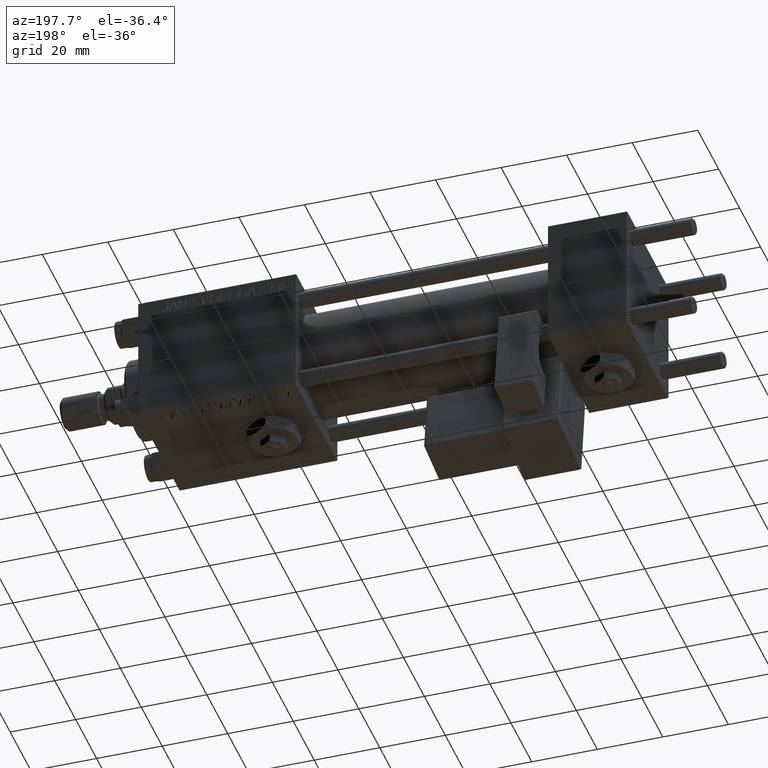
[diagram: clean part render]
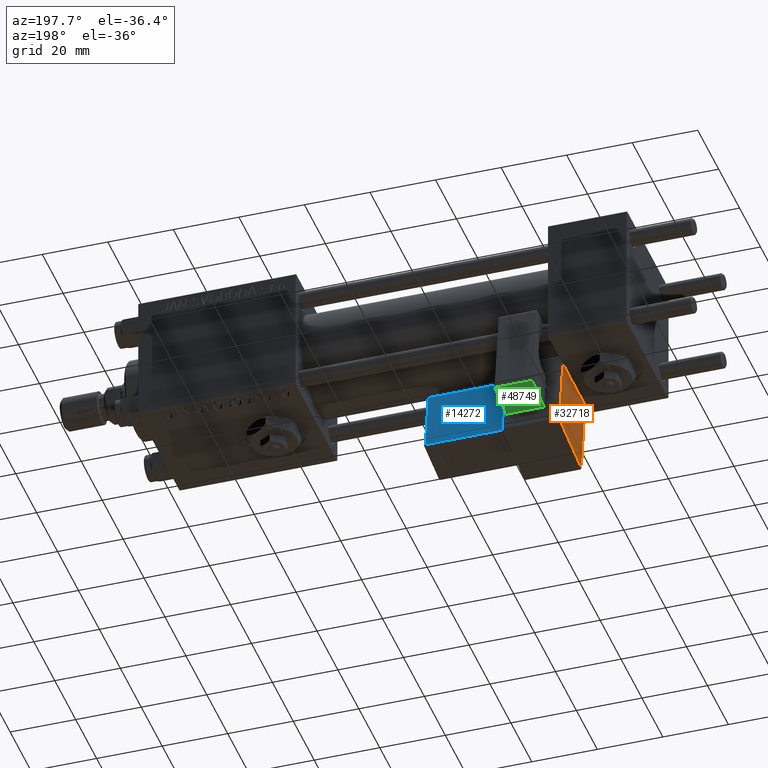
[diagram: same view with three faces highlighted in distinct colors, each labeled with its STEP entity id]
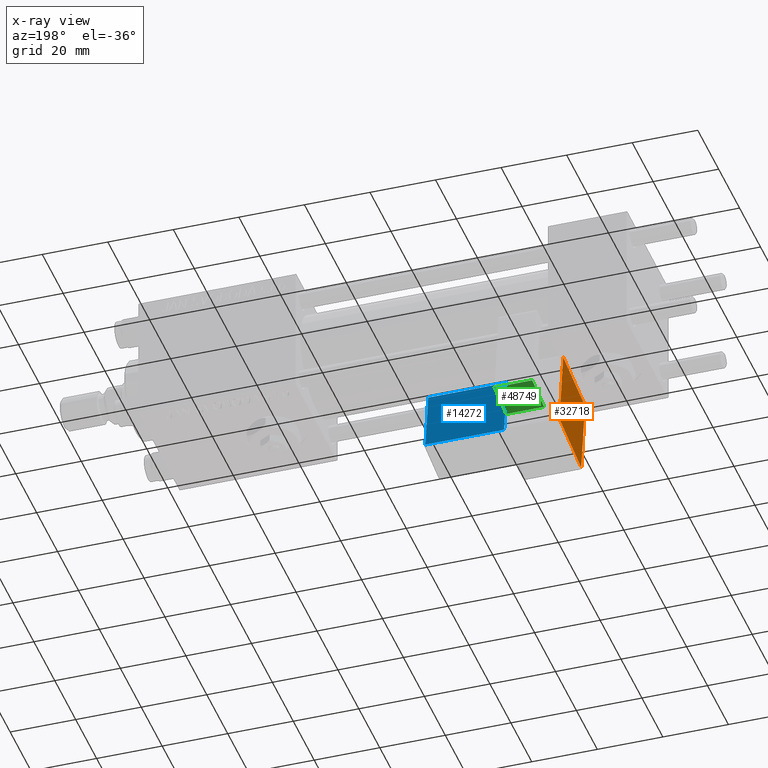
[diagram: x-ray of the same camera — body ghosted, the three highlighted faces saturated]
A machine part, auxiliary view with three faces highlighted in distinct colors.
The next image is the same camera in x-ray (body ghosted, the three faces saturated) — at least one of them is partly hidden behind the body in this view.
Their STEP definitions:

[orange] entity #32718 — the highlighted planar face has unit normal (1, -0, -0).
#2545 = DIRECTION ( 'NONE',  ( -0.000000000000000000, -1.000000000000000000, -0.000000000000000000 ) ) ;
#3574 = VERTEX_POINT ( 'NONE', #48280 ) ;
#3784 = VERTEX_POINT ( 'NONE', #53952 ) ;
#5292 = FACE_OUTER_BOUND ( 'NONE', #49460, .T. ) ;
#5829 = DIRECTION ( 'NONE',  ( -1.334402673828313093E-16, 0.000000000000000000, -1.000000000000000000 ) ) ;
#5859 = LINE ( 'NONE', #40309, #10526 ) ;
#6100 = CARTESIAN_POINT ( 'NONE',  ( -8.750000000000000000, -32.75000000000000000, 25.00000000000000000 ) ) ;
#9169 = DIRECTION ( 'NONE',  ( 1.334402673828313093E-16, -0.000000000000000000, 1.000000000000000000 ) ) ;
#9693 = PLANE ( 'NONE',  #39005 ) ;
#10526 = VECTOR ( 'NONE', #2545, 1000.000000000000000 ) ;
#13462 = VECTOR ( 'NONE', #9169, 1000.000000000000000 ) ;
#13901 = EDGE_CURVE ( 'NONE', #3574, #48368, #50735, .T. ) ;
#14535 = CARTESIAN_POINT ( 'NONE',  ( -8.750000000000000000, -32.75000000000000000, 24.50000000000000000 ) ) ;
#16290 = CARTESIAN_POINT ( 'NONE',  ( -8.750000000000003553, -32.25000000000000000, -0.5000000000000001110 ) ) ;
#22708 = ORIENTED_EDGE ( 'NONE', *, *, #39781, .T. ) ;
#25722 = CARTESIAN_POINT ( 'NONE',  ( -8.750000000000000000, -32.25000000000000000, 25.00000000000000000 ) ) ;
#28133 = VECTOR ( 'NONE', #51207, 1000.000000000000000 ) ;
#30114 = CARTESIAN_POINT ( 'NONE',  ( -8.750000000000003553, -11.25000000000000000, -0.5000000000000001110 ) ) ;
#30151 = LINE ( 'NONE', #25722, #13462 ) ;
#32718 = ADVANCED_FACE ( 'NONE', ( #5292 ), #9693, .F. ) ;
#33991 = ORIENTED_EDGE ( 'NONE', *, *, #37109, .T. ) ;
#35494 = LINE ( 'NONE', #14535, #28133 ) ;
#36574 = VECTOR ( 'NONE', #51281, 1000.000000000000000 ) ;
#37109 = EDGE_CURVE ( 'NONE', #48368, #51118, #5859, .T. ) ;
#39005 = AXIS2_PLACEMENT_3D ( 'NONE', #6100, #39732, #5829 ) ;
#39732 = DIRECTION ( 'NONE',  ( 1.000000000000000000, 0.000000000000000000, -1.334402673828313093E-16 ) ) ;
#39781 = EDGE_CURVE ( 'NONE', #3784, #3574, #35494, .T. ) ;
#40309 = CARTESIAN_POINT ( 'NONE',  ( -8.750000000000003553, -32.75000000000000000, -0.5000000000000004441 ) ) ;
#41666 = CARTESIAN_POINT ( 'NONE',  ( -8.750000000000003553, -11.25000000000000000, -1.000000000000000888 ) ) ;
#46254 = ORIENTED_EDGE ( 'NONE', *, *, #13901, .T. ) ;
#46307 = ORIENTED_EDGE ( 'NONE', *, *, #50980, .T. ) ;
#48280 = CARTESIAN_POINT ( 'NONE',  ( -8.750000000000000000, -11.25000000000000000, 24.50000000000000000 ) ) ;
#48368 = VERTEX_POINT ( 'NONE', #30114 ) ;
#49460 = EDGE_LOOP ( 'NONE', ( #46307, #22708, #46254, #33991 ) ) ;
#50735 = LINE ( 'NONE', #41666, #36574 ) ;
#50980 = EDGE_CURVE ( 'NONE', #51118, #3784, #30151, .T. ) ;
#51118 = VERTEX_POINT ( 'NONE', #16290 ) ;
#51207 = DIRECTION ( 'NONE',  ( 0.000000000000000000, 1.000000000000000000, 0.000000000000000000 ) ) ;
#51281 = DIRECTION ( 'NONE',  ( -1.334402673828313093E-16, 0.000000000000000000, -1.000000000000000000 ) ) ;
#53952 = CARTESIAN_POINT ( 'NONE',  ( -8.750000000000000000, -32.25000000000000000, 24.50000000000000000 ) ) ;

[blue] entity #14272 — the highlighted planar face has unit normal (-0, -0.9902, -0.1399).
#1130 = CARTESIAN_POINT ( 'NONE',  ( 33.25000000000000000, -14.24999999999999822, 2.500000000000005773 ) ) ;
#1683 = ORIENTED_EDGE ( 'NONE', *, *, #23679, .T. ) ;
#2946 = DIRECTION ( 'NONE',  ( -1.334402673828313339E-16, 0.000000000000000000, 1.000000000000000000 ) ) ;
#3308 = CARTESIAN_POINT ( 'NONE',  ( 33.75000000000000000, -14.24999999999999822, 21.50000000000000000 ) ) ;
#5177 = VERTEX_POINT ( 'NONE', #1130 ) ;
#6918 = EDGE_CURVE ( 'NONE', #24489, #5177, #29692, .T. ) ;
#11217 = LINE ( 'NONE', #23910, #36893 ) ;
#12602 = EDGE_LOOP ( 'NONE', ( #1683, #29811, #19339, #36366 ) ) ;
#14272 = ADVANCED_FACE ( 'NONE', ( #33884 ), #42680, .F. ) ;
#18263 = VERTEX_POINT ( 'NONE', #47555 ) ;
#19339 = ORIENTED_EDGE ( 'NONE', *, *, #31963, .T. ) ;
#22220 = CARTESIAN_POINT ( 'NONE',  ( 33.25000000000000000, -14.24999999999999822, 2.000000000000004885 ) ) ;
#23679 = EDGE_CURVE ( 'NONE', #5177, #18263, #46378, .T. ) ;
#23910 = CARTESIAN_POINT ( 'NONE',  ( 9.250000000000001776, -14.24999999999999822, 22.00000000000000000 ) ) ;
#24489 = VERTEX_POINT ( 'NONE', #44636 ) ;
#26277 = DIRECTION ( 'NONE',  ( -1.000000000000000000, 0.000000000000000000, -1.334402673828313339E-16 ) ) ;
#28009 = CARTESIAN_POINT ( 'NONE',  ( 9.250000000000001776, -14.24999999999999822, 21.50000000000000000 ) ) ;
#29692 = LINE ( 'NONE', #22220, #42919 ) ;
#29811 = ORIENTED_EDGE ( 'NONE', *, *, #36375, .T. ) ;
#31963 = EDGE_CURVE ( 'NONE', #45400, #24489, #40809, .T. ) ;
#32595 = VECTOR ( 'NONE', #26277, 1000.000000000000000 ) ;
#33884 = FACE_OUTER_BOUND ( 'NONE', #12602, .T. ) ;
#36366 = ORIENTED_EDGE ( 'NONE', *, *, #6918, .T. ) ;
#36375 = EDGE_CURVE ( 'NONE', #18263, #45400, #11217, .T. ) ;
#36893 = VECTOR ( 'NONE', #2946, 1000.000000000000000 ) ;
#37469 = AXIS2_PLACEMENT_3D ( 'NONE', #50669, #54538, #45983 ) ;
#40809 = LINE ( 'NONE', #3308, #45172 ) ;
#42680 = PLANE ( 'NONE',  #37469 ) ;
#42919 = VECTOR ( 'NONE', #46189, 1000.000000000000000 ) ;
#43347 = CARTESIAN_POINT ( 'NONE',  ( 33.75000000000000000, -14.24999999999999822, 2.500000000000005773 ) ) ;
#44636 = CARTESIAN_POINT ( 'NONE',  ( 33.25000000000000000, -14.24999999999999822, 21.50000000000000000 ) ) ;
#45172 = VECTOR ( 'NONE', #52657, 1000.000000000000000 ) ;
#45400 = VERTEX_POINT ( 'NONE', #28009 ) ;
#45983 = DIRECTION ( 'NONE',  ( 0.000000000000000000, -0.000000000000000000, -1.000000000000000000 ) ) ;
#46189 = DIRECTION ( 'NONE',  ( 1.734723475976807341E-16, -0.000000000000000000, -1.000000000000000000 ) ) ;
#46378 = LINE ( 'NONE', #43347, #32595 ) ;
#47555 = CARTESIAN_POINT ( 'NONE',  ( 9.250000000000003553, -14.24999999999999822, 2.500000000000002220 ) ) ;
#50669 = CARTESIAN_POINT ( 'NONE',  ( 33.75000000000000000, -14.24999999999999822, 22.00000000000000355 ) ) ;
#52657 = DIRECTION ( 'NONE',  ( 1.000000000000000000, -0.000000000000000000, 1.334402673828313339E-16 ) ) ;
#54538 = DIRECTION ( 'NONE',  ( 0.000000000000000000, -1.000000000000000000, 0.000000000000000000 ) ) ;

[green] entity #48749 — the highlighted planar face has unit normal (-0, -0.1399, 0.9902).
#39 = EDGE_LOOP ( 'NONE', ( #31434, #26780, #10161, #8582 ) ) ;
#193 = VERTEX_POINT ( 'NONE', #25084 ) ;
#2520 = VECTOR ( 'NONE', #17809, 1000.000000000000000 ) ;
#3441 = VERTEX_POINT ( 'NONE', #26000 ) ;
#4889 = EDGE_CURVE ( 'NONE', #49053, #193, #47009, .T. ) ;
#6799 = EDGE_CURVE ( 'NONE', #193, #38476, #22834, .T. ) ;
#8582 = ORIENTED_EDGE ( 'NONE', *, *, #6799, .F. ) ;
#9262 = CARTESIAN_POINT ( 'NONE',  ( 5.750000000000000000, 5.750000000000001776, 0.000000000000000000 ) ) ;
#10161 = ORIENTED_EDGE ( 'NONE', *, *, #11388, .F. ) ;
#11388 = EDGE_CURVE ( 'NONE', #38476, #3441, #35410, .T. ) ;
#11736 = AXIS2_PLACEMENT_3D ( 'NONE', #37922, #54457, #28863 ) ;
#15109 = DIRECTION ( 'NONE',  ( -1.000000000000000000, -1.508455196501571429E-16, -0.000000000000000000 ) ) ;
#15663 = VECTOR ( 'NONE', #15109, 1000.000000000000000 ) ;
#17171 = CARTESIAN_POINT ( 'NONE',  ( -5.750000000000000000, 5.750000000000000000, 0.000000000000000000 ) ) ;
#17809 = DIRECTION ( 'NONE',  ( -0.000000000000000000, 1.000000000000000000, -0.000000000000000000 ) ) ;
#20274 = DIRECTION ( 'NONE',  ( 1.000000000000000000, 0.000000000000000000, 0.000000000000000000 ) ) ;
#21616 = VECTOR ( 'NONE', #43381, 1000.000000000000000 ) ;
#22834 = LINE ( 'NONE', #35790, #15663 ) ;
#25084 = CARTESIAN_POINT ( 'NONE',  ( 5.750000000000000000, 5.750000000000001776, 0.000000000000000000 ) ) ;
#26000 = CARTESIAN_POINT ( 'NONE',  ( -5.749999999999998224, -5.750000000000000000, 0.000000000000000000 ) ) ;
#26590 = CARTESIAN_POINT ( 'NONE',  ( -5.750000000000000000, 5.750000000000000000, 0.000000000000000000 ) ) ;
#26780 = ORIENTED_EDGE ( 'NONE', *, *, #32574, .F. ) ;
#28863 = DIRECTION ( 'NONE',  ( 1.000000000000000000, 0.000000000000000000, 0.000000000000000000 ) ) ;
#29373 = CARTESIAN_POINT ( 'NONE',  ( -5.749999999999998224, -5.750000000000000000, 0.000000000000000000 ) ) ;
#31434 = ORIENTED_EDGE ( 'NONE', *, *, #4889, .F. ) ;
#32574 = EDGE_CURVE ( 'NONE', #3441, #49053, #33503, .T. ) ;
#33503 = LINE ( 'NONE', #29373, #39916 ) ;
#33802 = PLANE ( 'NONE',  #11736 ) ;
#35410 = LINE ( 'NONE', #26590, #21616 ) ;
#35790 = CARTESIAN_POINT ( 'NONE',  ( -5.750000000000000000, 5.750000000000000000, 0.000000000000000000 ) ) ;
#37650 = FACE_OUTER_BOUND ( 'NONE', #39, .T. ) ;
#37922 = CARTESIAN_POINT ( 'NONE',  ( 0.000000000000000000, 0.000000000000000000, 0.000000000000000000 ) ) ;
#38476 = VERTEX_POINT ( 'NONE', #17171 ) ;
#39916 = VECTOR ( 'NONE', #20274, 1000.000000000000000 ) ;
#43381 = DIRECTION ( 'NONE',  ( 1.508455196501571429E-16, -1.000000000000000000, 0.000000000000000000 ) ) ;
#47009 = LINE ( 'NONE', #9262, #2520 ) ;
#48749 = ADVANCED_FACE ( 'NONE', ( #37650 ), #33802, .F. ) ;
#49053 = VERTEX_POINT ( 'NONE', #52461 ) ;
#52461 = CARTESIAN_POINT ( 'NONE',  ( 5.750000000000000000, -5.750000000000000000, 0.000000000000000000 ) ) ;
#54457 = DIRECTION ( 'NONE',  ( -0.000000000000000000, 0.000000000000000000, 1.000000000000000000 ) ) ;